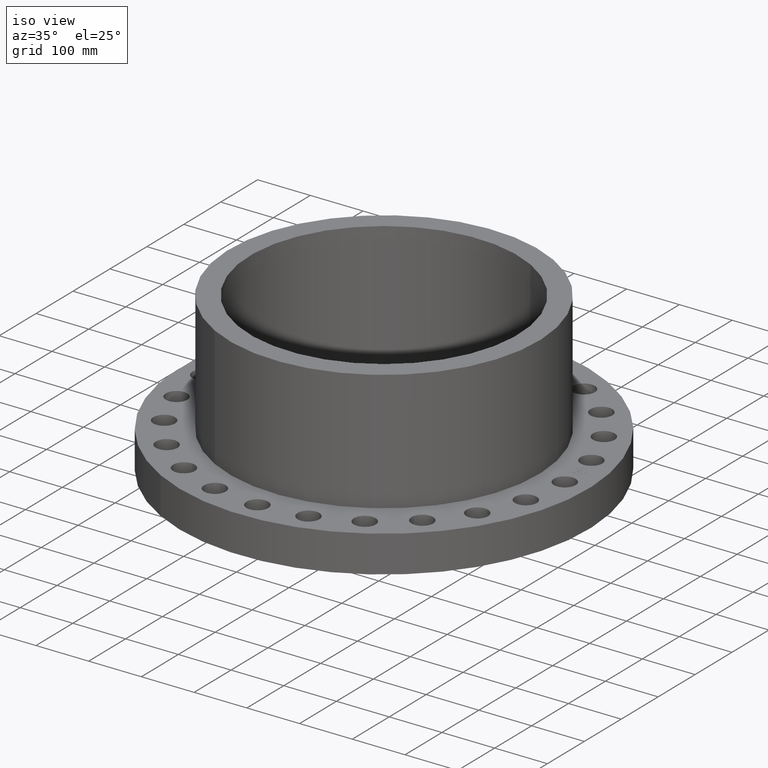
[diagram: clean part render]
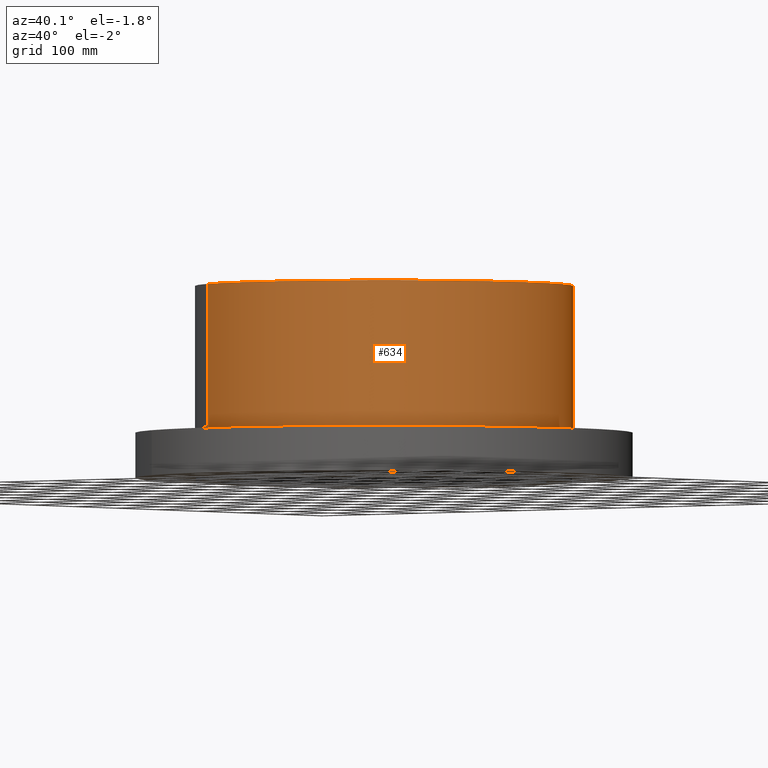
[diagram: tour spotlight — one face highlighted and labeled with its STEP entity id]
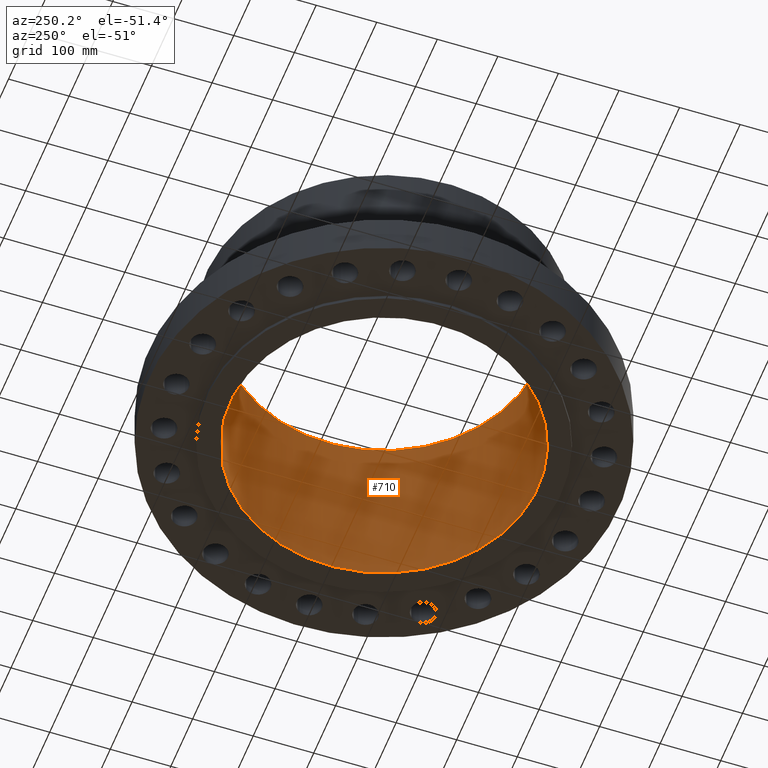
[diagram: tour spotlight — one face highlighted and labeled with its STEP entity id]
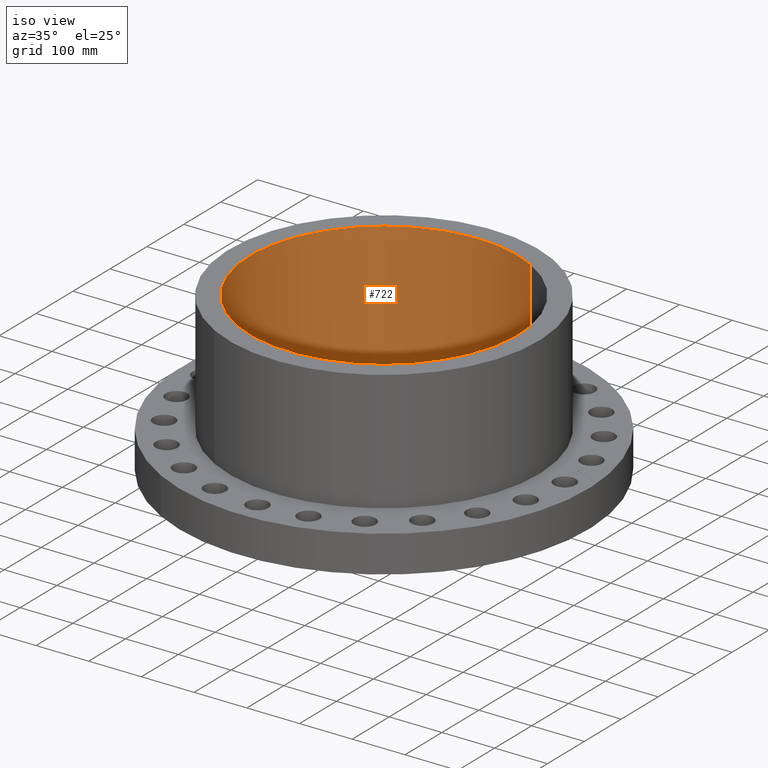
[diagram: tour spotlight — one face highlighted and labeled with its STEP entity id]
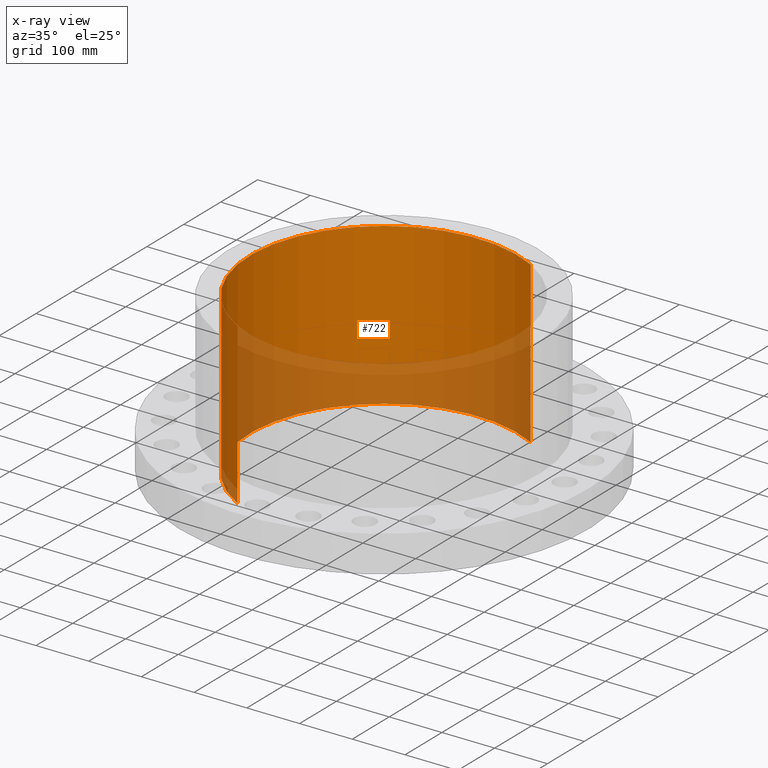
[diagram: x-ray of the same camera — body ghosted, this tour face saturated]
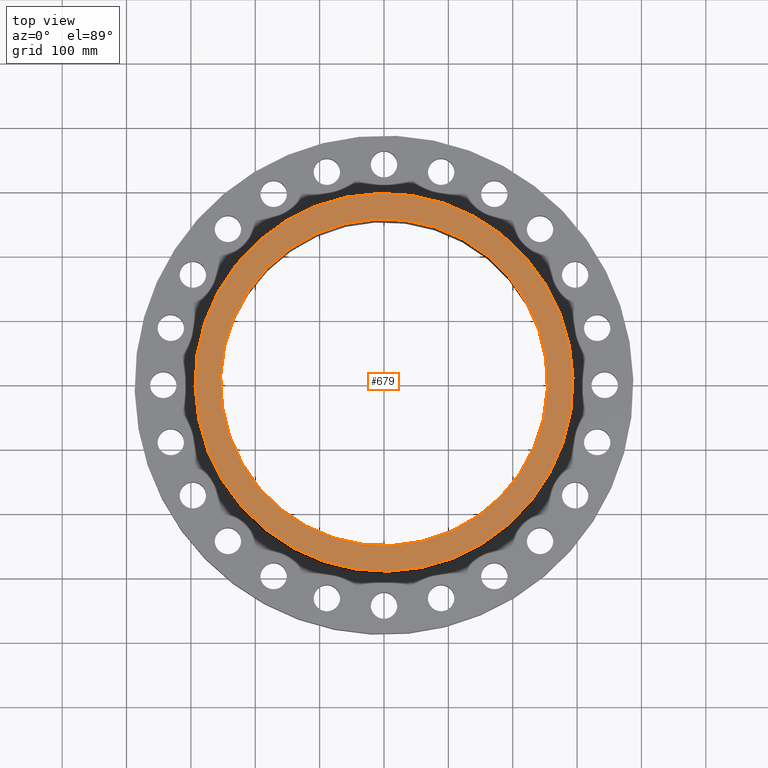
[diagram: tour spotlight — one face highlighted and labeled with its STEP entity id]
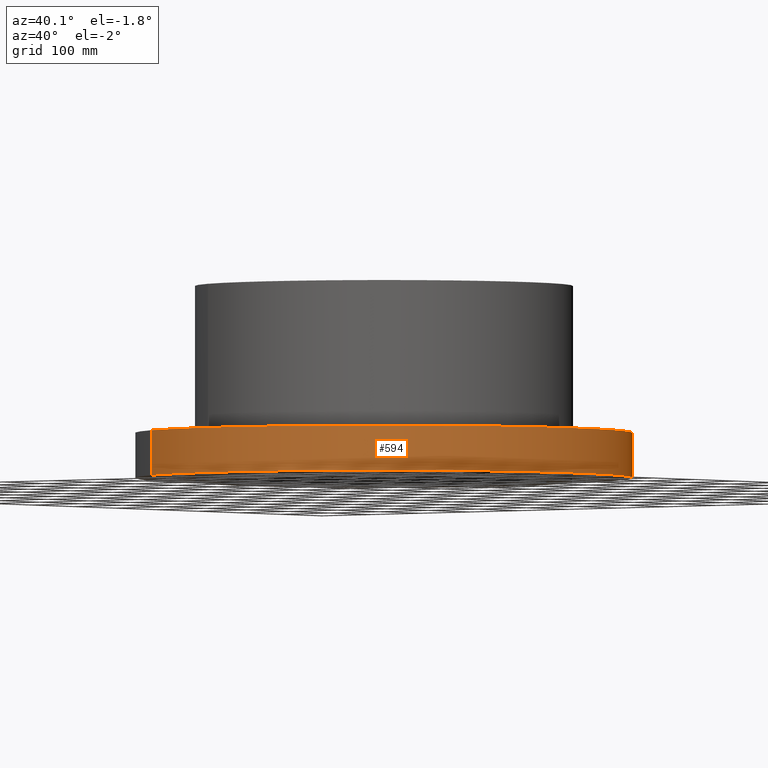
[diagram: tour spotlight — one face highlighted and labeled with its STEP entity id]
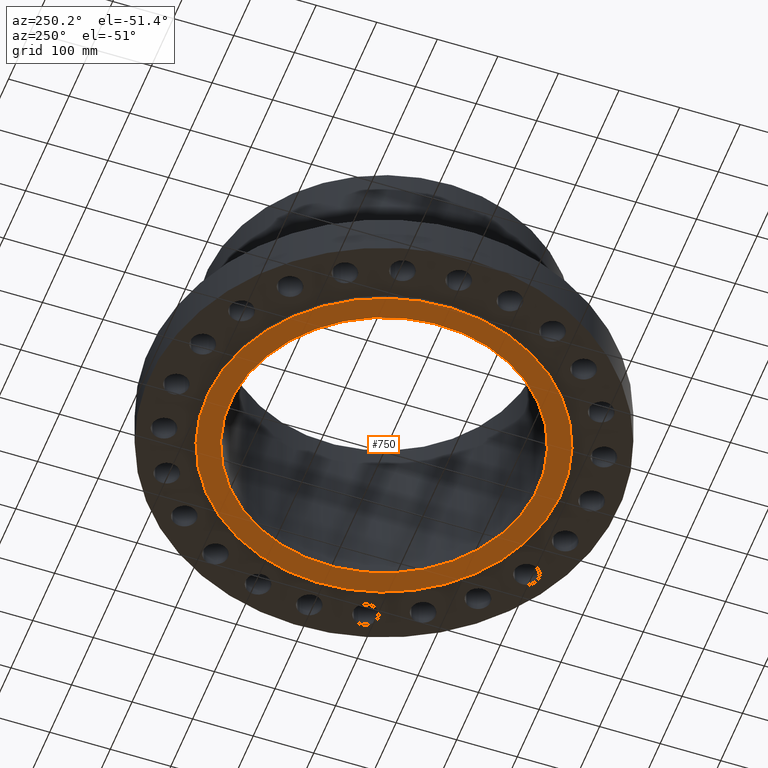
[diagram: tour spotlight — one face highlighted and labeled with its STEP entity id]
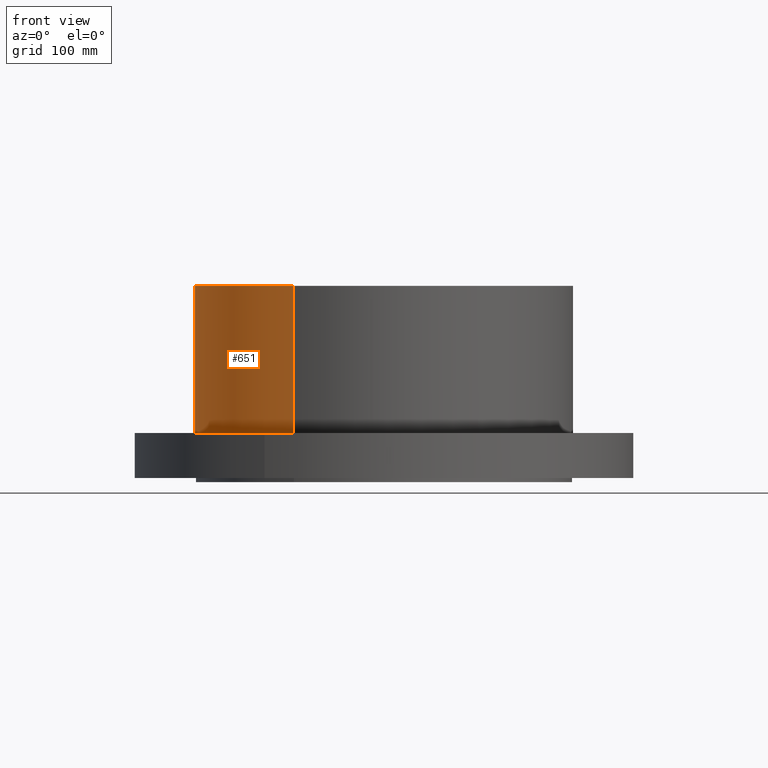
[diagram: tour spotlight — one face highlighted and labeled with its STEP entity id]
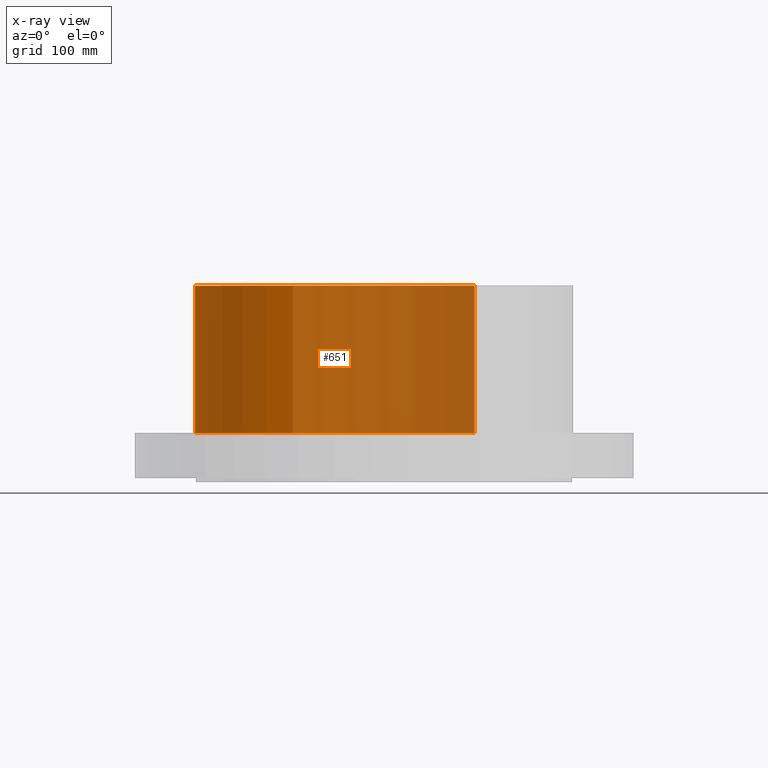
[diagram: x-ray of the same camera — body ghosted, this tour face saturated]
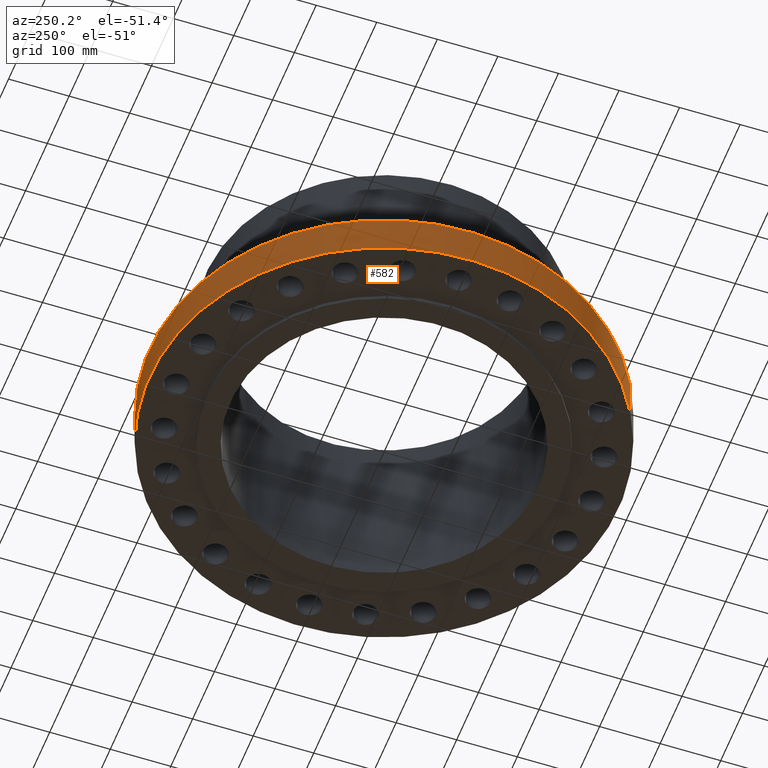
[diagram: tour spotlight — one face highlighted and labeled with its STEP entity id]
A machine part: a face-by-face anatomy tour. The part has 445 B-rep faces; the first image is the clean iso view, then the 8 largest visible faces are spotlighted one at a time (largest first), each with its STEP entity span.

Face 1 — auxiliary view, entity #634. In plain terms, the highlighted cylindrical surface (partial cylindrical patch) has radius 293.624 mm, axis along (0, 0, -1).
Definition (entity closure, byte-faithful):
#598=AXIS2_PLACEMENT_3D('Cylinder Axis2P3D',#595,#596,#597) ;
#602=AXIS2_PLACEMENT_3D('Circle Axis2P3D',#600,#601,$) ;
#618=AXIS2_PLACEMENT_3D('Circle Axis2P3D',#616,#617,$) ;
#595=CARTESIAN_POINT('Axis2P3D Location',(0.,0.,5.75000000002)) ;
#600=CARTESIAN_POINT('Axis2P3D Location',(0.,0.,2.75000000001)) ;
#604=CARTESIAN_POINT('Vertex',(5.54215922629,10.1448544155,2.75000000001)) ;
#606=CARTESIAN_POINT('Vertex',(-5.54215922629,-10.1448544155,2.75000000001)) ;
#609=CARTESIAN_POINT('Line Origine',(5.54215922629,10.1448544155,7.25000000003)) ;
#613=CARTESIAN_POINT('Vertex',(5.54215922629,10.1448544155,11.75)) ;
#616=CARTESIAN_POINT('Axis2P3D Location',(0.,0.,11.75)) ;
#620=CARTESIAN_POINT('Vertex',(-5.54215922629,-10.1448544155,11.75)) ;
#623=CARTESIAN_POINT('Line Origine',(-5.54215922629,-10.1448544155,7.25000000003)) ;
#596=DIRECTION('Axis2P3D Direction',(0.,0.,-0.0393700787402)) ;
#597=DIRECTION('Axis2P3D XDirection',(-0.0188750212049,-0.0345504945626,0.)) ;
#601=DIRECTION('Axis2P3D Direction',(0.,0.,-0.0393700787402)) ;
#610=DIRECTION('Vector Direction',(0.,0.,-0.0393700787402)) ;
#617=DIRECTION('Axis2P3D Direction',(0.,0.,-0.0393700787402)) ;
#624=DIRECTION('Vector Direction',(0.,0.,-0.0393700787402)) ;
#611=VECTOR('Line Direction',#610,0.0393700787402) ;
#625=VECTOR('Line Direction',#624,0.0393700787402) ;
#629=ORIENTED_EDGE('',*,*,#608,.F.) ;
#630=ORIENTED_EDGE('',*,*,#615,.T.) ;
#631=ORIENTED_EDGE('',*,*,#622,.T.) ;
#632=ORIENTED_EDGE('',*,*,#627,.F.) ;
#634=ADVANCED_FACE('PartBody',(#633),#599,.T.) ;
#603=CIRCLE('generated circle',#602,11.56) ;
#619=CIRCLE('generated circle',#618,11.56) ;
#599=CYLINDRICAL_SURFACE('generated cylinder',#598,11.56) ;
#608=EDGE_CURVE('',#605,#607,#603,.T.) ;
#615=EDGE_CURVE('',#605,#614,#612,.F.) ;
#622=EDGE_CURVE('',#614,#621,#619,.T.) ;
#627=EDGE_CURVE('',#607,#621,#626,.F.) ;
#628=EDGE_LOOP('',(#629,#630,#631,#632)) ;
#633=FACE_OUTER_BOUND('',#628,.T.) ;
#612=LINE('Line',#609,#611) ;
#626=LINE('Line',#623,#625) ;
#605=VERTEX_POINT('',#604) ;
#607=VERTEX_POINT('',#606) ;
#614=VERTEX_POINT('',#613) ;
#621=VERTEX_POINT('',#620) ;

Face 2 — auxiliary view, entity #710. In plain terms, the highlighted cylindrical surface (partial cylindrical patch) has radius 254 mm, axis along (0, 0, -1).
Definition (entity closure, byte-faithful):
#672=AXIS2_PLACEMENT_3D('Circle Axis2P3D',#670,#671,$) ;
#683=AXIS2_PLACEMENT_3D('Cylinder Axis2P3D',#680,#681,#682) ;
#694=AXIS2_PLACEMENT_3D('Circle Axis2P3D',#692,#693,$) ;
#665=CARTESIAN_POINT('Vertex',(-4.79425538606,-8.77582561894,11.75)) ;
#667=CARTESIAN_POINT('Vertex',(4.79425538606,8.77582561894,11.75)) ;
#670=CARTESIAN_POINT('Axis2P3D Location',(0.,0.,11.75)) ;
#680=CARTESIAN_POINT('Axis2P3D Location',(0.,0.,5.75000000002)) ;
#685=CARTESIAN_POINT('Line Origine',(4.79425538606,8.77582561894,5.75000000002)) ;
#689=CARTESIAN_POINT('Vertex',(4.79425538606,8.77582561894,-0.250000000001)) ;
#692=CARTESIAN_POINT('Axis2P3D Location',(0.,0.,-0.250000000001)) ;
#696=CARTESIAN_POINT('Vertex',(-4.79425538606,-8.77582561894,-0.250000000001)) ;
#699=CARTESIAN_POINT('Line Origine',(-4.79425538606,-8.77582561894,5.75000000002)) ;
#671=DIRECTION('Axis2P3D Direction',(0.,0.,-0.0393700787402)) ;
#681=DIRECTION('Axis2P3D Direction',(0.,0.,-0.0393700787402)) ;
#682=DIRECTION('Axis2P3D XDirection',(-0.0188750212049,-0.0345504945626,0.)) ;
#686=DIRECTION('Vector Direction',(0.,0.,-0.0393700787402)) ;
#693=DIRECTION('Axis2P3D Direction',(0.,0.,-0.0393700787402)) ;
#700=DIRECTION('Vector Direction',(0.,0.,-0.0393700787402)) ;
#687=VECTOR('Line Direction',#686,0.0393700787402) ;
#701=VECTOR('Line Direction',#700,0.0393700787402) ;
#705=ORIENTED_EDGE('',*,*,#674,.F.) ;
#706=ORIENTED_EDGE('',*,*,#691,.T.) ;
#707=ORIENTED_EDGE('',*,*,#698,.T.) ;
#708=ORIENTED_EDGE('',*,*,#703,.F.) ;
#710=ADVANCED_FACE('PartBody',(#709),#684,.F.) ;
#673=CIRCLE('generated circle',#672,10.) ;
#695=CIRCLE('generated circle',#694,10.) ;
#684=CYLINDRICAL_SURFACE('generated cylinder',#683,10.) ;
#674=EDGE_CURVE('',#668,#666,#673,.T.) ;
#691=EDGE_CURVE('',#668,#690,#688,.T.) ;
#698=EDGE_CURVE('',#690,#697,#695,.T.) ;
#703=EDGE_CURVE('',#666,#697,#702,.T.) ;
#704=EDGE_LOOP('',(#705,#706,#707,#708)) ;
#709=FACE_OUTER_BOUND('',#704,.T.) ;
#688=LINE('Line',#685,#687) ;
#702=LINE('Line',#699,#701) ;
#666=VERTEX_POINT('',#665) ;
#668=VERTEX_POINT('',#667) ;
#690=VERTEX_POINT('',#689) ;
#697=VERTEX_POINT('',#696) ;

Face 3 — iso view, entity #722. An x-ray twin of the same camera follows (body ghosted, this face saturated) — the face is partly hidden behind the body. In plain terms, the highlighted cylindrical surface (partial cylindrical patch) has radius 254 mm, axis along (0, 0, -1).
Definition (entity closure, byte-faithful):
#663=AXIS2_PLACEMENT_3D('Circle Axis2P3D',#661,#662,$) ;
#683=AXIS2_PLACEMENT_3D('Cylinder Axis2P3D',#680,#681,#682) ;
#713=AXIS2_PLACEMENT_3D('Circle Axis2P3D',#711,#712,$) ;
#661=CARTESIAN_POINT('Axis2P3D Location',(0.,0.,11.75)) ;
#665=CARTESIAN_POINT('Vertex',(-4.79425538606,-8.77582561894,11.75)) ;
#667=CARTESIAN_POINT('Vertex',(4.79425538606,8.77582561894,11.75)) ;
#680=CARTESIAN_POINT('Axis2P3D Location',(0.,0.,5.75000000002)) ;
#685=CARTESIAN_POINT('Line Origine',(4.79425538606,8.77582561894,5.75000000002)) ;
#689=CARTESIAN_POINT('Vertex',(4.79425538606,8.77582561894,-0.250000000001)) ;
#696=CARTESIAN_POINT('Vertex',(-4.79425538606,-8.77582561894,-0.250000000001)) ;
#699=CARTESIAN_POINT('Line Origine',(-4.79425538606,-8.77582561894,5.75000000002)) ;
#711=CARTESIAN_POINT('Axis2P3D Location',(0.,0.,-0.250000000001)) ;
#662=DIRECTION('Axis2P3D Direction',(0.,0.,-0.0393700787402)) ;
#681=DIRECTION('Axis2P3D Direction',(0.,0.,-0.0393700787402)) ;
#682=DIRECTION('Axis2P3D XDirection',(-0.0188750212049,-0.0345504945626,0.)) ;
#686=DIRECTION('Vector Direction',(0.,0.,-0.0393700787402)) ;
#700=DIRECTION('Vector Direction',(0.,0.,-0.0393700787402)) ;
#712=DIRECTION('Axis2P3D Direction',(0.,0.,-0.0393700787402)) ;
#687=VECTOR('Line Direction',#686,0.0393700787402) ;
#701=VECTOR('Line Direction',#700,0.0393700787402) ;
#717=ORIENTED_EDGE('',*,*,#669,.F.) ;
#718=ORIENTED_EDGE('',*,*,#703,.T.) ;
#719=ORIENTED_EDGE('',*,*,#715,.T.) ;
#720=ORIENTED_EDGE('',*,*,#691,.F.) ;
#722=ADVANCED_FACE('PartBody',(#721),#684,.F.) ;
#664=CIRCLE('generated circle',#663,10.) ;
#714=CIRCLE('generated circle',#713,10.) ;
#684=CYLINDRICAL_SURFACE('generated cylinder',#683,10.) ;
#669=EDGE_CURVE('',#666,#668,#664,.T.) ;
#691=EDGE_CURVE('',#668,#690,#688,.T.) ;
#703=EDGE_CURVE('',#666,#697,#702,.T.) ;
#715=EDGE_CURVE('',#697,#690,#714,.T.) ;
#716=EDGE_LOOP('',(#717,#718,#719,#720)) ;
#721=FACE_OUTER_BOUND('',#716,.T.) ;
#688=LINE('Line',#685,#687) ;
#702=LINE('Line',#699,#701) ;
#666=VERTEX_POINT('',#665) ;
#668=VERTEX_POINT('',#667) ;
#690=VERTEX_POINT('',#689) ;
#697=VERTEX_POINT('',#696) ;

Face 4 — top view, entity #679. In plain terms, the highlighted planar face has unit normal (0, 0, -1).
Definition (entity closure, byte-faithful):
#618=AXIS2_PLACEMENT_3D('Circle Axis2P3D',#616,#617,$) ;
#642=AXIS2_PLACEMENT_3D('Circle Axis2P3D',#640,#641,$) ;
#655=AXIS2_PLACEMENT_3D('Plane Axis2P3D',#652,#653,#654) ;
#663=AXIS2_PLACEMENT_3D('Circle Axis2P3D',#661,#662,$) ;
#672=AXIS2_PLACEMENT_3D('Circle Axis2P3D',#670,#671,$) ;
#613=CARTESIAN_POINT('Vertex',(5.54215922629,10.1448544155,11.75)) ;
#616=CARTESIAN_POINT('Axis2P3D Location',(0.,0.,11.75)) ;
#620=CARTESIAN_POINT('Vertex',(-5.54215922629,-10.1448544155,11.75)) ;
#640=CARTESIAN_POINT('Axis2P3D Location',(0.,0.,11.75)) ;
#652=CARTESIAN_POINT('Axis2P3D Location',(0.,11.56,11.75)) ;
#661=CARTESIAN_POINT('Axis2P3D Location',(0.,0.,11.75)) ;
#665=CARTESIAN_POINT('Vertex',(-4.79425538606,-8.77582561894,11.75)) ;
#667=CARTESIAN_POINT('Vertex',(4.79425538606,8.77582561894,11.75)) ;
#670=CARTESIAN_POINT('Axis2P3D Location',(0.,0.,11.75)) ;
#617=DIRECTION('Axis2P3D Direction',(0.,0.,-0.0393700787402)) ;
#641=DIRECTION('Axis2P3D Direction',(0.,0.,-0.0393700787402)) ;
#653=DIRECTION('Axis2P3D Direction',(0.,0.,-0.0393700787402)) ;
#654=DIRECTION('Axis2P3D XDirection',(0.0393700787402,0.,0.)) ;
#662=DIRECTION('Axis2P3D Direction',(0.,0.,-0.0393700787402)) ;
#671=DIRECTION('Axis2P3D Direction',(0.,0.,-0.0393700787402)) ;
#658=ORIENTED_EDGE('',*,*,#622,.F.) ;
#659=ORIENTED_EDGE('',*,*,#644,.F.) ;
#676=ORIENTED_EDGE('',*,*,#669,.T.) ;
#677=ORIENTED_EDGE('',*,*,#674,.T.) ;
#678=FACE_BOUND('',#675,.T.) ;
#679=ADVANCED_FACE('PartBody',(#660,#678),#656,.F.) ;
#619=CIRCLE('generated circle',#618,11.56) ;
#643=CIRCLE('generated circle',#642,11.56) ;
#664=CIRCLE('generated circle',#663,10.) ;
#673=CIRCLE('generated circle',#672,10.) ;
#622=EDGE_CURVE('',#614,#621,#619,.T.) ;
#644=EDGE_CURVE('',#621,#614,#643,.T.) ;
#669=EDGE_CURVE('',#666,#668,#664,.T.) ;
#674=EDGE_CURVE('',#668,#666,#673,.T.) ;
#657=EDGE_LOOP('',(#658,#659)) ;
#675=EDGE_LOOP('',(#676,#677)) ;
#660=FACE_OUTER_BOUND('',#657,.T.) ;
#656=PLANE('',#655) ;
#614=VERTEX_POINT('',#613) ;
#621=VERTEX_POINT('',#620) ;
#666=VERTEX_POINT('',#665) ;
#668=VERTEX_POINT('',#667) ;

Face 5 — auxiliary view, entity #594. In plain terms, the highlighted cylindrical surface (partial cylindrical patch) has radius 387.35 mm, axis along (0, 0, -1).
Definition (entity closure, byte-faithful):
#91=AXIS2_PLACEMENT_3D('Circle Axis2P3D',#89,#90,$) ;
#555=AXIS2_PLACEMENT_3D('Cylinder Axis2P3D',#552,#553,#554) ;
#585=AXIS2_PLACEMENT_3D('Circle Axis2P3D',#583,#584,$) ;
#84=CARTESIAN_POINT('Vertex',(-7.31123946374,-13.3831340689,2.23792987641E-015)) ;
#86=CARTESIAN_POINT('Vertex',(7.31123946374,13.3831340689,2.23792987641E-015)) ;
#89=CARTESIAN_POINT('Axis2P3D Location',(0.,0.,0.)) ;
#552=CARTESIAN_POINT('Axis2P3D Location',(0.,0.,5.75000000002)) ;
#557=CARTESIAN_POINT('Line Origine',(-7.31123946374,-13.3831340689,1.37500000001)) ;
#561=CARTESIAN_POINT('Vertex',(-7.31123946374,-13.3831340689,2.75000000001)) ;
#568=CARTESIAN_POINT('Vertex',(7.31123946374,13.3831340689,2.75000000001)) ;
#571=CARTESIAN_POINT('Line Origine',(7.31123946374,13.3831340689,1.37500000001)) ;
#583=CARTESIAN_POINT('Axis2P3D Location',(0.,0.,2.75000000001)) ;
#90=DIRECTION('Axis2P3D Direction',(0.,0.,-0.0393700787402)) ;
#553=DIRECTION('Axis2P3D Direction',(0.,0.,-0.0393700787402)) ;
#554=DIRECTION('Axis2P3D XDirection',(0.0188750212049,0.0345504945626,0.)) ;
#558=DIRECTION('Vector Direction',(0.,0.,-0.0393700787402)) ;
#572=DIRECTION('Vector Direction',(0.,0.,-0.0393700787402)) ;
#584=DIRECTION('Axis2P3D Direction',(0.,0.,-0.0393700787402)) ;
#559=VECTOR('Line Direction',#558,0.0393700787402) ;
#573=VECTOR('Line Direction',#572,0.0393700787402) ;
#589=ORIENTED_EDGE('',*,*,#93,.F.) ;
#590=ORIENTED_EDGE('',*,*,#575,.T.) ;
#591=ORIENTED_EDGE('',*,*,#587,.T.) ;
#592=ORIENTED_EDGE('',*,*,#563,.F.) ;
#594=ADVANCED_FACE('PartBody',(#593),#556,.T.) ;
#92=CIRCLE('generated circle',#91,15.2500000001) ;
#586=CIRCLE('generated circle',#585,15.2500000001) ;
#556=CYLINDRICAL_SURFACE('generated cylinder',#555,15.2500000001) ;
#93=EDGE_CURVE('',#87,#85,#92,.T.) ;
#563=EDGE_CURVE('',#85,#562,#560,.F.) ;
#575=EDGE_CURVE('',#87,#569,#574,.F.) ;
#587=EDGE_CURVE('',#569,#562,#586,.T.) ;
#588=EDGE_LOOP('',(#589,#590,#591,#592)) ;
#593=FACE_OUTER_BOUND('',#588,.T.) ;
#560=LINE('Line',#557,#559) ;
#574=LINE('Line',#571,#573) ;
#85=VERTEX_POINT('',#84) ;
#87=VERTEX_POINT('',#86) ;
#562=VERTEX_POINT('',#561) ;
#569=VERTEX_POINT('',#568) ;

Face 6 — auxiliary view, entity #750. In plain terms, the highlighted planar face has unit normal (0, 0, -1).
Definition (entity closure, byte-faithful):
#694=AXIS2_PLACEMENT_3D('Circle Axis2P3D',#692,#693,$) ;
#713=AXIS2_PLACEMENT_3D('Circle Axis2P3D',#711,#712,$) ;
#726=AXIS2_PLACEMENT_3D('Plane Axis2P3D',#723,#724,#725) ;
#730=AXIS2_PLACEMENT_3D('Circle Axis2P3D',#728,#729,$) ;
#739=AXIS2_PLACEMENT_3D('Circle Axis2P3D',#737,#738,$) ;
#689=CARTESIAN_POINT('Vertex',(4.79425538606,8.77582561894,-0.250000000001)) ;
#692=CARTESIAN_POINT('Axis2P3D Location',(0.,0.,-0.250000000001)) ;
#696=CARTESIAN_POINT('Vertex',(-4.79425538606,-8.77582561894,-0.250000000001)) ;
#711=CARTESIAN_POINT('Axis2P3D Location',(0.,0.,-0.250000000001)) ;
#723=CARTESIAN_POINT('Axis2P3D Location',(0.,10.,-0.250000000001)) ;
#728=CARTESIAN_POINT('Axis2P3D Location',(0.,0.,-0.250000000001)) ;
#732=CARTESIAN_POINT('Vertex',(-5.51339369397,-10.0921994618,-0.250000000001)) ;
#734=CARTESIAN_POINT('Vertex',(5.51339369397,10.0921994618,-0.250000000001)) ;
#737=CARTESIAN_POINT('Axis2P3D Location',(0.,0.,-0.250000000001)) ;
#693=DIRECTION('Axis2P3D Direction',(0.,0.,-0.0393700787402)) ;
#712=DIRECTION('Axis2P3D Direction',(0.,0.,-0.0393700787402)) ;
#724=DIRECTION('Axis2P3D Direction',(0.,0.,-0.0393700787402)) ;
#725=DIRECTION('Axis2P3D XDirection',(0.0393700787402,0.,0.)) ;
#729=DIRECTION('Axis2P3D Direction',(0.,0.,-0.0393700787402)) ;
#738=DIRECTION('Axis2P3D Direction',(0.,0.,-0.0393700787402)) ;
#743=ORIENTED_EDGE('',*,*,#736,.T.) ;
#744=ORIENTED_EDGE('',*,*,#741,.T.) ;
#747=ORIENTED_EDGE('',*,*,#698,.F.) ;
#748=ORIENTED_EDGE('',*,*,#715,.F.) ;
#749=FACE_BOUND('',#746,.T.) ;
#750=ADVANCED_FACE('PartBody',(#745,#749),#727,.T.) ;
#695=CIRCLE('generated circle',#694,10.) ;
#714=CIRCLE('generated circle',#713,10.) ;
#731=CIRCLE('generated circle',#730,11.5) ;
#740=CIRCLE('generated circle',#739,11.5) ;
#698=EDGE_CURVE('',#690,#697,#695,.T.) ;
#715=EDGE_CURVE('',#697,#690,#714,.T.) ;
#736=EDGE_CURVE('',#733,#735,#731,.T.) ;
#741=EDGE_CURVE('',#735,#733,#740,.T.) ;
#742=EDGE_LOOP('',(#743,#744)) ;
#746=EDGE_LOOP('',(#747,#748)) ;
#745=FACE_OUTER_BOUND('',#742,.T.) ;
#727=PLANE('',#726) ;
#690=VERTEX_POINT('',#689) ;
#697=VERTEX_POINT('',#696) ;
#733=VERTEX_POINT('',#732) ;
#735=VERTEX_POINT('',#734) ;

Face 7 — front view, entity #651. An x-ray twin of the same camera follows (body ghosted, this face saturated) — the face is partly hidden behind the body. In plain terms, the highlighted cylindrical surface (partial cylindrical patch) has radius 293.624 mm, axis along (0, 0, -1).
Definition (entity closure, byte-faithful):
#598=AXIS2_PLACEMENT_3D('Cylinder Axis2P3D',#595,#596,#597) ;
#637=AXIS2_PLACEMENT_3D('Circle Axis2P3D',#635,#636,$) ;
#642=AXIS2_PLACEMENT_3D('Circle Axis2P3D',#640,#641,$) ;
#595=CARTESIAN_POINT('Axis2P3D Location',(0.,0.,5.75000000002)) ;
#604=CARTESIAN_POINT('Vertex',(5.54215922629,10.1448544155,2.75000000001)) ;
#606=CARTESIAN_POINT('Vertex',(-5.54215922629,-10.1448544155,2.75000000001)) ;
#609=CARTESIAN_POINT('Line Origine',(5.54215922629,10.1448544155,7.25000000003)) ;
#613=CARTESIAN_POINT('Vertex',(5.54215922629,10.1448544155,11.75)) ;
#620=CARTESIAN_POINT('Vertex',(-5.54215922629,-10.1448544155,11.75)) ;
#623=CARTESIAN_POINT('Line Origine',(-5.54215922629,-10.1448544155,7.25000000003)) ;
#635=CARTESIAN_POINT('Axis2P3D Location',(0.,0.,2.75000000001)) ;
#640=CARTESIAN_POINT('Axis2P3D Location',(0.,0.,11.75)) ;
#596=DIRECTION('Axis2P3D Direction',(0.,0.,-0.0393700787402)) ;
#597=DIRECTION('Axis2P3D XDirection',(-0.0188750212049,-0.0345504945626,0.)) ;
#610=DIRECTION('Vector Direction',(0.,0.,-0.0393700787402)) ;
#624=DIRECTION('Vector Direction',(0.,0.,-0.0393700787402)) ;
#636=DIRECTION('Axis2P3D Direction',(0.,0.,-0.0393700787402)) ;
#641=DIRECTION('Axis2P3D Direction',(0.,0.,-0.0393700787402)) ;
#611=VECTOR('Line Direction',#610,0.0393700787402) ;
#625=VECTOR('Line Direction',#624,0.0393700787402) ;
#646=ORIENTED_EDGE('',*,*,#639,.F.) ;
#647=ORIENTED_EDGE('',*,*,#627,.T.) ;
#648=ORIENTED_EDGE('',*,*,#644,.T.) ;
#649=ORIENTED_EDGE('',*,*,#615,.F.) ;
#651=ADVANCED_FACE('PartBody',(#650),#599,.T.) ;
#638=CIRCLE('generated circle',#637,11.56) ;
#643=CIRCLE('generated circle',#642,11.56) ;
#599=CYLINDRICAL_SURFACE('generated cylinder',#598,11.56) ;
#615=EDGE_CURVE('',#605,#614,#612,.F.) ;
#627=EDGE_CURVE('',#607,#621,#626,.F.) ;
#639=EDGE_CURVE('',#607,#605,#638,.T.) ;
#644=EDGE_CURVE('',#621,#614,#643,.T.) ;
#645=EDGE_LOOP('',(#646,#647,#648,#649)) ;
#650=FACE_OUTER_BOUND('',#645,.T.) ;
#612=LINE('Line',#609,#611) ;
#626=LINE('Line',#623,#625) ;
#605=VERTEX_POINT('',#604) ;
#607=VERTEX_POINT('',#606) ;
#614=VERTEX_POINT('',#613) ;
#621=VERTEX_POINT('',#620) ;

Face 8 — auxiliary view, entity #582. In plain terms, the highlighted cylindrical surface (partial cylindrical patch) has radius 387.35 mm, axis along (0, 0, -1).
Definition (entity closure, byte-faithful):
#82=AXIS2_PLACEMENT_3D('Circle Axis2P3D',#80,#81,$) ;
#555=AXIS2_PLACEMENT_3D('Cylinder Axis2P3D',#552,#553,#554) ;
#566=AXIS2_PLACEMENT_3D('Circle Axis2P3D',#564,#565,$) ;
#80=CARTESIAN_POINT('Axis2P3D Location',(0.,0.,0.)) ;
#84=CARTESIAN_POINT('Vertex',(-7.31123946374,-13.3831340689,2.23792987641E-015)) ;
#86=CARTESIAN_POINT('Vertex',(7.31123946374,13.3831340689,2.23792987641E-015)) ;
#552=CARTESIAN_POINT('Axis2P3D Location',(0.,0.,5.75000000002)) ;
#557=CARTESIAN_POINT('Line Origine',(-7.31123946374,-13.3831340689,1.37500000001)) ;
#561=CARTESIAN_POINT('Vertex',(-7.31123946374,-13.3831340689,2.75000000001)) ;
#564=CARTESIAN_POINT('Axis2P3D Location',(0.,0.,2.75000000001)) ;
#568=CARTESIAN_POINT('Vertex',(7.31123946374,13.3831340689,2.75000000001)) ;
#571=CARTESIAN_POINT('Line Origine',(7.31123946374,13.3831340689,1.37500000001)) ;
#81=DIRECTION('Axis2P3D Direction',(0.,0.,-0.0393700787402)) ;
#553=DIRECTION('Axis2P3D Direction',(0.,0.,-0.0393700787402)) ;
#554=DIRECTION('Axis2P3D XDirection',(0.0188750212049,0.0345504945626,0.)) ;
#558=DIRECTION('Vector Direction',(0.,0.,-0.0393700787402)) ;
#565=DIRECTION('Axis2P3D Direction',(0.,0.,-0.0393700787402)) ;
#572=DIRECTION('Vector Direction',(0.,0.,-0.0393700787402)) ;
#559=VECTOR('Line Direction',#558,0.0393700787402) ;
#573=VECTOR('Line Direction',#572,0.0393700787402) ;
#577=ORIENTED_EDGE('',*,*,#88,.F.) ;
#578=ORIENTED_EDGE('',*,*,#563,.T.) ;
#579=ORIENTED_EDGE('',*,*,#570,.T.) ;
#580=ORIENTED_EDGE('',*,*,#575,.F.) ;
#582=ADVANCED_FACE('PartBody',(#581),#556,.T.) ;
#83=CIRCLE('generated circle',#82,15.2500000001) ;
#567=CIRCLE('generated circle',#566,15.2500000001) ;
#556=CYLINDRICAL_SURFACE('generated cylinder',#555,15.2500000001) ;
#88=EDGE_CURVE('',#85,#87,#83,.T.) ;
#563=EDGE_CURVE('',#85,#562,#560,.F.) ;
#570=EDGE_CURVE('',#562,#569,#567,.T.) ;
#575=EDGE_CURVE('',#87,#569,#574,.F.) ;
#576=EDGE_LOOP('',(#577,#578,#579,#580)) ;
#581=FACE_OUTER_BOUND('',#576,.T.) ;
#560=LINE('Line',#557,#559) ;
#574=LINE('Line',#571,#573) ;
#85=VERTEX_POINT('',#84) ;
#87=VERTEX_POINT('',#86) ;
#562=VERTEX_POINT('',#561) ;
#569=VERTEX_POINT('',#568) ;